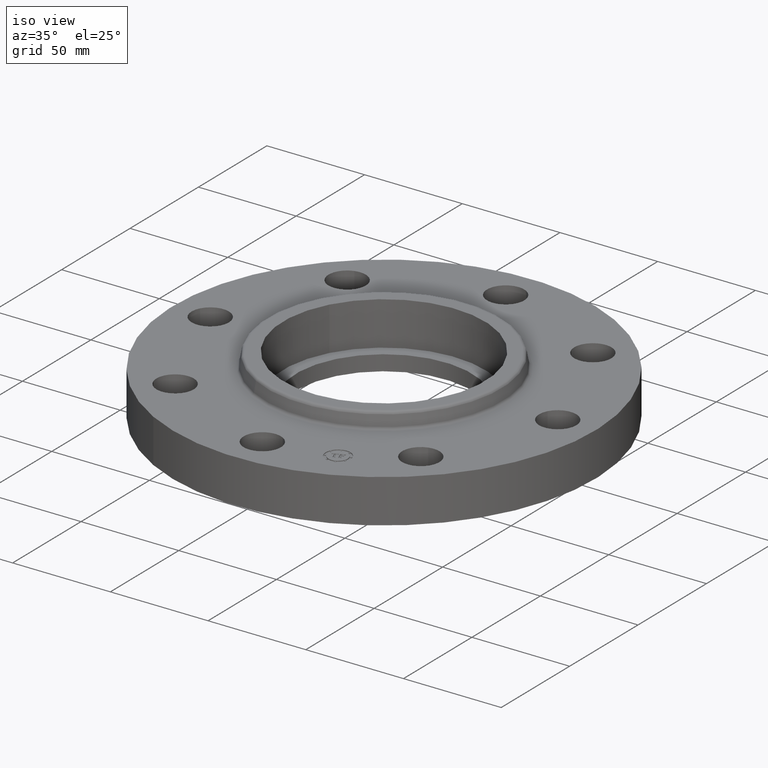
[diagram: clean part render]
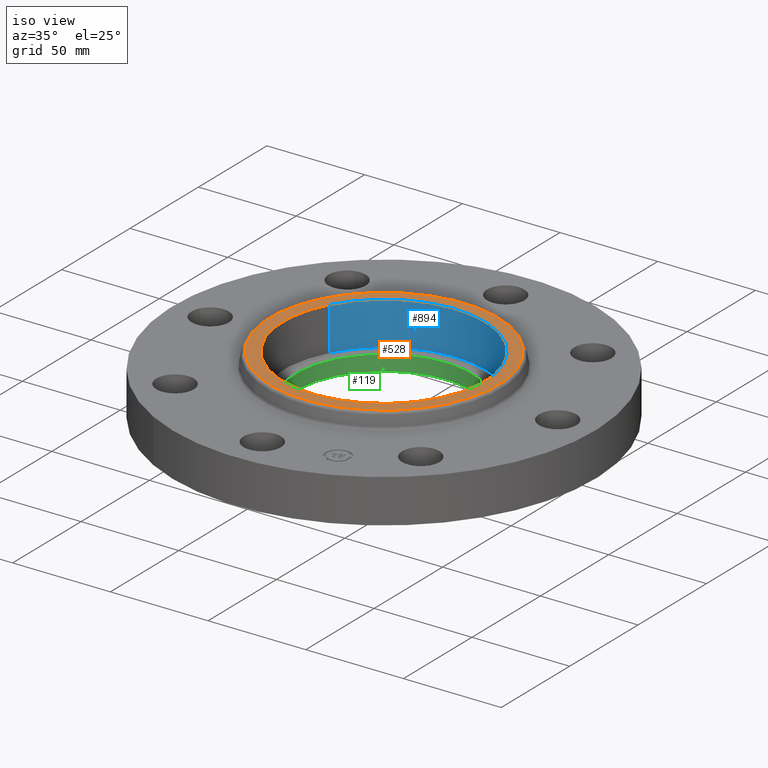
[diagram: same view with three faces highlighted in distinct colors, each labeled with its STEP entity id]
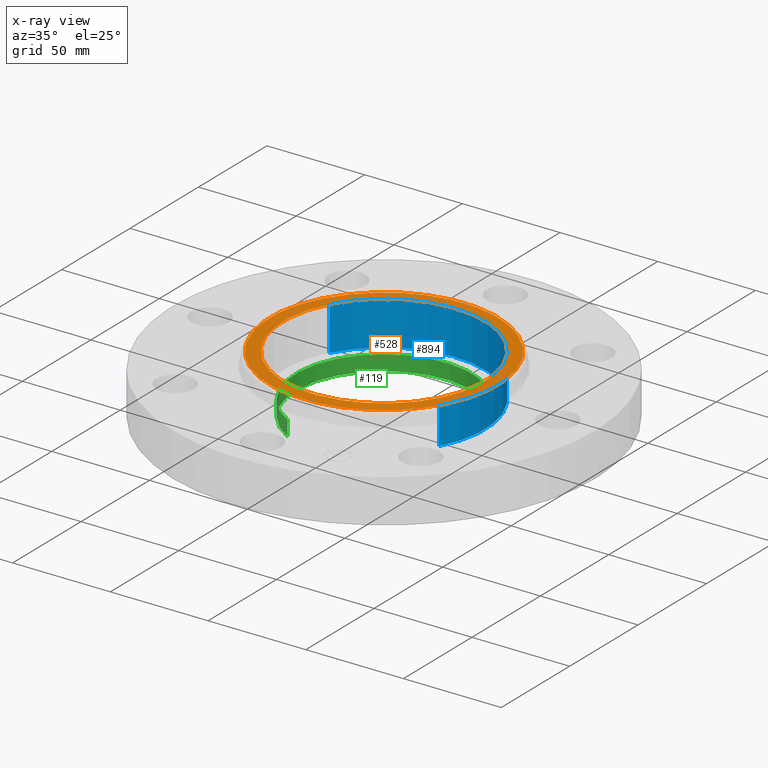
[diagram: x-ray of the same camera — body ghosted, the three highlighted faces saturated]
A machine part, iso view with three faces highlighted in distinct colors.
The next image is the same camera in x-ray (body ghosted, the three faces saturated) — at least one of them is partly hidden behind the body in this view.
Their STEP definitions:

[orange] entity #528 — the highlighted planar face has unit normal (0, 0, -1).
#472=AXIS2_PLACEMENT_3D('Circle Axis2P3D',#470,#471,$) ;
#491=AXIS2_PLACEMENT_3D('Circle Axis2P3D',#489,#490,$) ;
#504=AXIS2_PLACEMENT_3D('Plane Axis2P3D',#501,#502,#503) ;
#512=AXIS2_PLACEMENT_3D('Circle Axis2P3D',#510,#511,$) ;
#521=AXIS2_PLACEMENT_3D('Circle Axis2P3D',#519,#520,$) ;
#467=CARTESIAN_POINT('Vertex',(1.1026752189,2.01843344924,1.19)) ;
#470=CARTESIAN_POINT('Axis2P3D Location',(0.,0.,1.19)) ;
#474=CARTESIAN_POINT('Vertex',(-1.1026752189,-2.01843344924,1.19)) ;
#489=CARTESIAN_POINT('Axis2P3D Location',(0.,0.,1.19)) ;
#501=CARTESIAN_POINT('Axis2P3D Location',(0.,2.29999265812,1.19)) ;
#510=CARTESIAN_POINT('Axis2P3D Location',(0.,0.,1.19)) ;
#514=CARTESIAN_POINT('Vertex',(-1.78588051345,0.975630971063,1.19)) ;
#516=CARTESIAN_POINT('Vertex',(1.78588051345,-0.975630971063,1.19)) ;
#519=CARTESIAN_POINT('Axis2P3D Location',(6.99353086378E-017,2.79741234551E-016,1.19)) ;
#471=DIRECTION('Axis2P3D Direction',(0.,0.,-0.0393700787402)) ;
#490=DIRECTION('Axis2P3D Direction',(0.,0.,-0.0393700787402)) ;
#502=DIRECTION('Axis2P3D Direction',(0.,0.,-0.0393700787402)) ;
#503=DIRECTION('Axis2P3D XDirection',(0.0393700787402,0.,0.)) ;
#511=DIRECTION('Axis2P3D Direction',(0.,0.,-0.0393700787402)) ;
#520=DIRECTION('Axis2P3D Direction',(0.,0.,-0.0393700787402)) ;
#507=ORIENTED_EDGE('',*,*,#476,.F.) ;
#508=ORIENTED_EDGE('',*,*,#493,.F.) ;
#525=ORIENTED_EDGE('',*,*,#518,.T.) ;
#526=ORIENTED_EDGE('',*,*,#523,.T.) ;
#527=FACE_BOUND('',#524,.T.) ;
#528=ADVANCED_FACE('PartBody',(#509,#527),#505,.F.) ;
#473=CIRCLE('generated circle',#472,2.29999265812) ;
#492=CIRCLE('generated circle',#491,2.29999265812) ;
#513=CIRCLE('generated circle',#512,2.03500000001) ;
#522=CIRCLE('generated circle',#521,2.03500000001) ;
#476=EDGE_CURVE('',#468,#475,#473,.T.) ;
#493=EDGE_CURVE('',#475,#468,#492,.T.) ;
#518=EDGE_CURVE('',#515,#517,#513,.T.) ;
#523=EDGE_CURVE('',#517,#515,#522,.T.) ;
#506=EDGE_LOOP('',(#507,#508)) ;
#524=EDGE_LOOP('',(#525,#526)) ;
#509=FACE_OUTER_BOUND('',#506,.T.) ;
#505=PLANE('',#504) ;
#468=VERTEX_POINT('',#467) ;
#475=VERTEX_POINT('',#474) ;
#515=VERTEX_POINT('',#514) ;
#517=VERTEX_POINT('',#516) ;

[blue] entity #894 — the highlighted cylindrical surface (partial cylindrical patch) has radius 51.689 mm, axis along (0, 0, -1).
#42=AXIS2_PLACEMENT_3D('Circle Axis2P3D',#40,#41,$) ;
#512=AXIS2_PLACEMENT_3D('Circle Axis2P3D',#510,#511,$) ;
#876=AXIS2_PLACEMENT_3D('Cylinder Axis2P3D',#873,#874,#875) ;
#40=CARTESIAN_POINT('Axis2P3D Location',(0.,-6.99353086378E-017,0.310000000001)) ;
#44=CARTESIAN_POINT('Vertex',(-1.78588051345,0.975630971063,0.310000000001)) ;
#46=CARTESIAN_POINT('Vertex',(1.78588051345,-0.975630971063,0.310000000001)) ;
#510=CARTESIAN_POINT('Axis2P3D Location',(0.,0.,1.19)) ;
#514=CARTESIAN_POINT('Vertex',(-1.78588051345,0.975630971063,1.19)) ;
#516=CARTESIAN_POINT('Vertex',(1.78588051345,-0.975630971063,1.19)) ;
#873=CARTESIAN_POINT('Axis2P3D Location',(0.,-6.99353086378E-017,1.18606299213)) ;
#878=CARTESIAN_POINT('Line Origine',(-1.78588051345,0.975630971063,0.750000000003)) ;
#883=CARTESIAN_POINT('Line Origine',(1.78588051345,-0.975630971063,0.750000000003)) ;
#41=DIRECTION('Axis2P3D Direction',(0.,0.,-0.0393700787402)) ;
#511=DIRECTION('Axis2P3D Direction',(0.,0.,-0.0393700787402)) ;
#874=DIRECTION('Axis2P3D Direction',(0.,0.,-0.0393700787402)) ;
#875=DIRECTION('Axis2P3D XDirection',(0.0345504945626,-0.0188750212049,0.)) ;
#879=DIRECTION('Vector Direction',(0.,0.,-0.0393700787402)) ;
#884=DIRECTION('Vector Direction',(0.,0.,-0.0393700787402)) ;
#880=VECTOR('Line Direction',#879,0.0393700787402) ;
#885=VECTOR('Line Direction',#884,0.0393700787402) ;
#889=ORIENTED_EDGE('',*,*,#518,.F.) ;
#890=ORIENTED_EDGE('',*,*,#882,.F.) ;
#891=ORIENTED_EDGE('',*,*,#48,.T.) ;
#892=ORIENTED_EDGE('',*,*,#887,.T.) ;
#894=ADVANCED_FACE('PartBody',(#893),#877,.F.) ;
#43=CIRCLE('generated circle',#42,2.03500000001) ;
#513=CIRCLE('generated circle',#512,2.03500000001) ;
#877=CYLINDRICAL_SURFACE('generated cylinder',#876,2.03500000001) ;
#48=EDGE_CURVE('',#45,#47,#43,.T.) ;
#518=EDGE_CURVE('',#515,#517,#513,.T.) ;
#882=EDGE_CURVE('',#45,#515,#881,.F.) ;
#887=EDGE_CURVE('',#47,#517,#886,.F.) ;
#888=EDGE_LOOP('',(#889,#890,#891,#892)) ;
#893=FACE_OUTER_BOUND('',#888,.T.) ;
#881=LINE('Line',#878,#880) ;
#886=LINE('Line',#883,#885) ;
#45=VERTEX_POINT('',#44) ;
#47=VERTEX_POINT('',#46) ;
#515=VERTEX_POINT('',#514) ;
#517=VERTEX_POINT('',#516) ;

[green] entity #119 — the highlighted cylindrical surface (partial cylindrical patch) has radius 45.0596 mm, axis along (0, 0, -1).
#60=AXIS2_PLACEMENT_3D('Circle Axis2P3D',#58,#59,$) ;
#80=AXIS2_PLACEMENT_3D('Cylinder Axis2P3D',#77,#78,#79) ;
#110=AXIS2_PLACEMENT_3D('Circle Axis2P3D',#108,#109,$) ;
#58=CARTESIAN_POINT('Axis2P3D Location',(-4.19611851827E-016,-2.09805925913E-016,0.310000000001)) ;
#62=CARTESIAN_POINT('Vertex',(-0.850500905487,-1.5568314648,0.310000000001)) ;
#64=CARTESIAN_POINT('Vertex',(0.850500905487,1.5568314648,0.310000000001)) ;
#77=CARTESIAN_POINT('Axis2P3D Location',(0.,0.,0.595000000002)) ;
#82=CARTESIAN_POINT('Line Origine',(0.850500905487,1.5568314648,0.155000000001)) ;
#86=CARTESIAN_POINT('Vertex',(0.850500905487,1.5568314648,-6.01443654285E-015)) ;
#93=CARTESIAN_POINT('Vertex',(-0.850500905487,-1.5568314648,-6.01443654285E-015)) ;
#96=CARTESIAN_POINT('Line Origine',(-0.850500905487,-1.5568314648,0.155000000001)) ;
#108=CARTESIAN_POINT('Axis2P3D Location',(0.,0.,-6.15430716013E-015)) ;
#59=DIRECTION('Axis2P3D Direction',(0.,0.,-0.0393700787402)) ;
#78=DIRECTION('Axis2P3D Direction',(0.,0.,-0.0393700787402)) ;
#79=DIRECTION('Axis2P3D XDirection',(-0.0188750212049,-0.0345504945626,0.)) ;
#83=DIRECTION('Vector Direction',(0.,0.,-0.0393700787402)) ;
#97=DIRECTION('Vector Direction',(0.,0.,-0.0393700787402)) ;
#109=DIRECTION('Axis2P3D Direction',(0.,0.,-0.0393700787402)) ;
#84=VECTOR('Line Direction',#83,0.0393700787402) ;
#98=VECTOR('Line Direction',#97,0.0393700787402) ;
#114=ORIENTED_EDGE('',*,*,#100,.T.) ;
#115=ORIENTED_EDGE('',*,*,#112,.T.) ;
#116=ORIENTED_EDGE('',*,*,#88,.F.) ;
#117=ORIENTED_EDGE('',*,*,#66,.F.) ;
#119=ADVANCED_FACE('PartBody',(#118),#81,.F.) ;
#61=CIRCLE('generated circle',#60,1.77400000001) ;
#111=CIRCLE('generated circle',#110,1.77400000001) ;
#81=CYLINDRICAL_SURFACE('generated cylinder',#80,1.77400000001) ;
#66=EDGE_CURVE('',#63,#65,#61,.T.) ;
#88=EDGE_CURVE('',#65,#87,#85,.T.) ;
#100=EDGE_CURVE('',#63,#94,#99,.T.) ;
#112=EDGE_CURVE('',#94,#87,#111,.T.) ;
#113=EDGE_LOOP('',(#114,#115,#116,#117)) ;
#118=FACE_OUTER_BOUND('',#113,.T.) ;
#85=LINE('Line',#82,#84) ;
#99=LINE('Line',#96,#98) ;
#63=VERTEX_POINT('',#62) ;
#65=VERTEX_POINT('',#64) ;
#87=VERTEX_POINT('',#86) ;
#94=VERTEX_POINT('',#93) ;